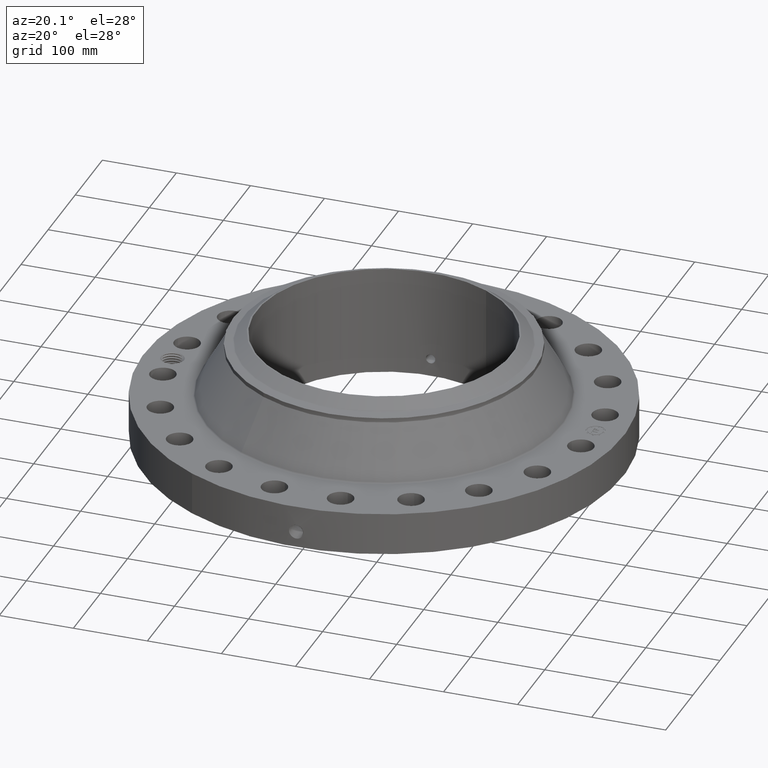
[diagram: clean part render]
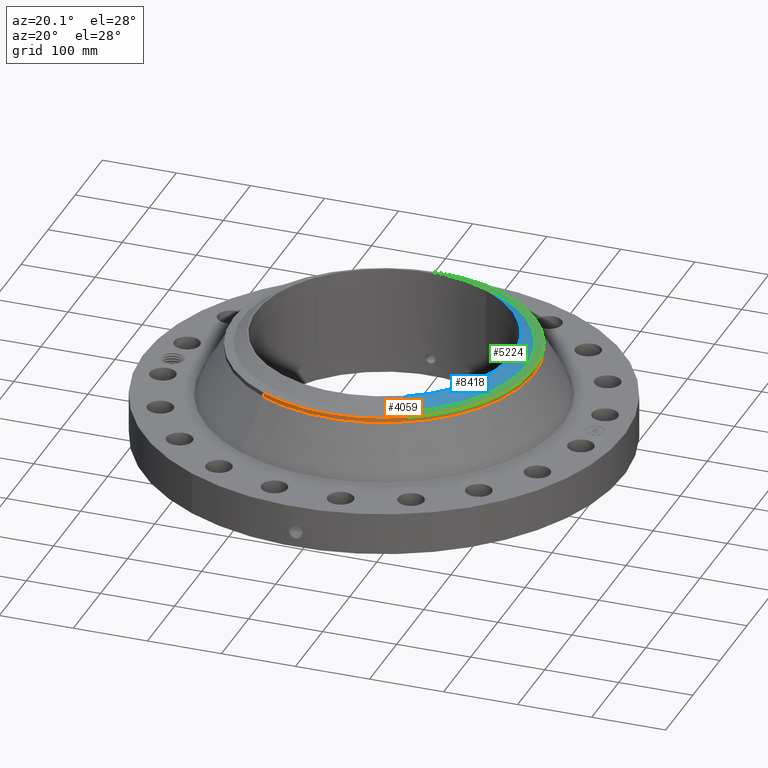
[diagram: same view with three faces highlighted in distinct colors, each labeled with its STEP entity id]
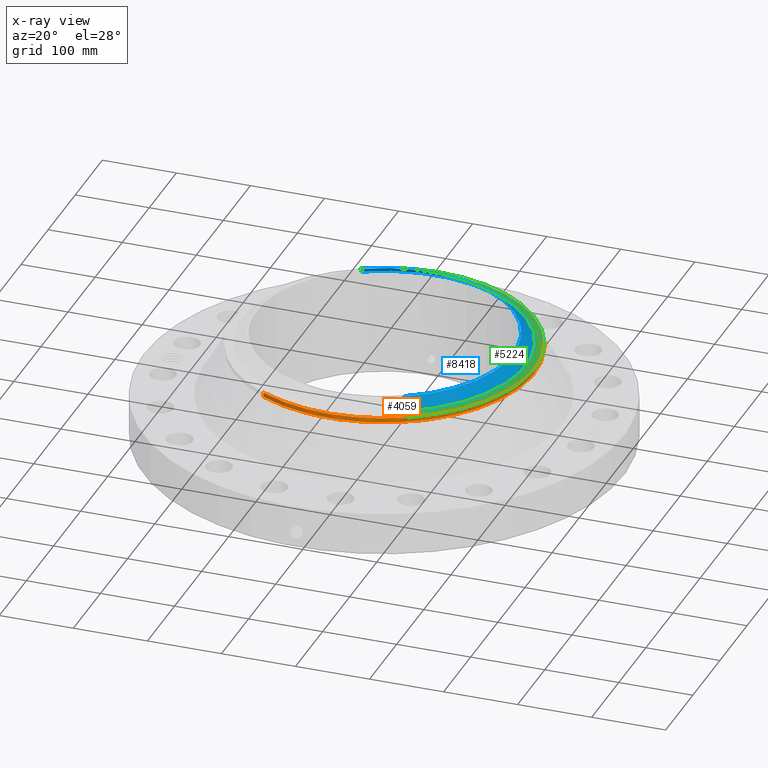
[diagram: x-ray of the same camera — body ghosted, the three highlighted faces saturated]
A machine part, auxiliary view with three faces highlighted in distinct colors.
The next image is the same camera in x-ray (body ghosted, the three faces saturated) — at least one of them is partly hidden behind the body in this view.
Their STEP definitions:

[orange] entity #4059 — the highlighted cylindrical surface (partial cylindrical patch) has radius 203.2 mm, axis along (0, 0, -1).
#3242=AXIS2_PLACEMENT_3D('Circle Axis2P3D',#3240,#3241,$) ;
#4024=AXIS2_PLACEMENT_3D('Cylinder Axis2P3D',#4021,#4022,#4023) ;
#4042=AXIS2_PLACEMENT_3D('Circle Axis2P3D',#4040,#4041,$) ;
#4049=AXIS2_PLACEMENT_3D('Circle Axis2P3D',#4047,#4048,$) ;
#3237=CARTESIAN_POINT('Vertex',(3.83540430885,7.02066049515,4.97716976636)) ;
#3240=CARTESIAN_POINT('Axis2P3D Location',(0.,0.,4.97716976636)) ;
#3244=CARTESIAN_POINT('Vertex',(-3.83540430885,-7.02066049515,4.97716976636)) ;
#4021=CARTESIAN_POINT('Axis2P3D Location',(0.,0.,2.90500000001)) ;
#4026=CARTESIAN_POINT('Line Origine',(-3.83540430885,-7.02066049515,5.09528000258)) ;
#4030=CARTESIAN_POINT('Vertex',(-3.83540430885,-7.02066049515,5.2133902388)) ;
#4033=CARTESIAN_POINT('Line Origine',(3.83540430885,7.02066049515,5.09528000258)) ;
#4037=CARTESIAN_POINT('Vertex',(3.83540430885,7.02066049515,5.2133902388)) ;
#4040=CARTESIAN_POINT('Axis2P3D Location',(0.,0.,5.2133902388)) ;
#4044=CARTESIAN_POINT('Vertex',(3.83540430885,-7.02066049515,5.2133902388)) ;
#4047=CARTESIAN_POINT('Axis2P3D Location',(0.,0.,5.2133902388)) ;
#3241=DIRECTION('Axis2P3D Direction',(0.,0.,-0.0393700787402)) ;
#4022=DIRECTION('Axis2P3D Direction',(0.,0.,-0.0393700787402)) ;
#4023=DIRECTION('Axis2P3D XDirection',(-0.0188750212049,-0.0345504945626,0.)) ;
#4027=DIRECTION('Vector Direction',(0.,0.,-0.0393700787402)) ;
#4034=DIRECTION('Vector Direction',(0.,0.,-0.0393700787402)) ;
#4041=DIRECTION('Axis2P3D Direction',(0.,0.,-0.0393700787402)) ;
#4048=DIRECTION('Axis2P3D Direction',(0.,0.,-0.0393700787402)) ;
#4028=VECTOR('Line Direction',#4027,0.0393700787402) ;
#4035=VECTOR('Line Direction',#4034,0.0393700787402) ;
#4053=ORIENTED_EDGE('',*,*,#4032,.F.) ;
#4054=ORIENTED_EDGE('',*,*,#3246,.F.) ;
#4055=ORIENTED_EDGE('',*,*,#4039,.T.) ;
#4056=ORIENTED_EDGE('',*,*,#4046,.F.) ;
#4057=ORIENTED_EDGE('',*,*,#4051,.T.) ;
#4059=ADVANCED_FACE('PartBody',(#4058),#4025,.T.) ;
#3243=CIRCLE('generated circle',#3242,8.00000000003) ;
#4043=CIRCLE('generated circle',#4042,8.00000000003) ;
#4050=CIRCLE('generated circle',#4049,8.00000000003) ;
#4025=CYLINDRICAL_SURFACE('generated cylinder',#4024,8.00000000003) ;
#3246=EDGE_CURVE('',#3238,#3245,#3243,.T.) ;
#4032=EDGE_CURVE('',#3245,#4031,#4029,.F.) ;
#4039=EDGE_CURVE('',#3238,#4038,#4036,.F.) ;
#4046=EDGE_CURVE('',#4045,#4038,#4043,.F.) ;
#4051=EDGE_CURVE('',#4045,#4031,#4050,.T.) ;
#4052=EDGE_LOOP('',(#4053,#4054,#4055,#4056,#4057)) ;
#4058=FACE_OUTER_BOUND('',#4052,.T.) ;
#4029=LINE('Line',#4026,#4028) ;
#4036=LINE('Line',#4033,#4035) ;
#3238=VERTEX_POINT('',#3237) ;
#3245=VERTEX_POINT('',#3244) ;
#4031=VERTEX_POINT('',#4030) ;
#4038=VERTEX_POINT('',#4037) ;
#4045=VERTEX_POINT('',#4044) ;

[blue] entity #8418 — the highlighted conical surface has half-angle 52.5 deg.
#4843=AXIS2_PLACEMENT_3D('Circle Axis2P3D',#4841,#4842,$) ;
#8379=AXIS2_PLACEMENT_3D('Cone Axis2P3D',#8376,#8377,#8378) ;
#8409=AXIS2_PLACEMENT_3D('Circle Axis2P3D',#8407,#8408,$) ;
#4841=CARTESIAN_POINT('Axis2P3D Location',(0.,0.,5.81000000002)) ;
#4845=CARTESIAN_POINT('Vertex',(3.2887346197,-6.01998834133,5.81000000002)) ;
#4847=CARTESIAN_POINT('Vertex',(-3.2887346197,6.01998834133,5.81000000002)) ;
#8376=CARTESIAN_POINT('Axis2P3D Location',(0.,0.,5.81000000002)) ;
#8381=CARTESIAN_POINT('Line Origine',(-3.44367592225,6.30360649323,5.56201437259)) ;
#8385=CARTESIAN_POINT('Vertex',(-3.5986172248,6.58722464514,5.31402874515)) ;
#8392=CARTESIAN_POINT('Vertex',(3.5986172248,-6.58722464514,5.31402874515)) ;
#8395=CARTESIAN_POINT('Line Origine',(3.44367592225,-6.30360649323,5.56201437259)) ;
#8407=CARTESIAN_POINT('Axis2P3D Location',(0.,0.,5.31402874515)) ;
#4842=DIRECTION('Axis2P3D Direction',(0.,0.,-0.0393700787402)) ;
#8377=DIRECTION('Axis2P3D Direction',(-0.,-0.,-0.0393700787402)) ;
#8378=DIRECTION('Axis2P3D XDirection',(-0.0188750212049,0.0345504945626,0.)) ;
#8382=DIRECTION('Vector Direction',(-0.014974561121,0.02741075027,-0.023966985394)) ;
#8396=DIRECTION('Vector Direction',(0.014974561121,-0.02741075027,-0.023966985394)) ;
#8408=DIRECTION('Axis2P3D Direction',(0.,0.,-0.0393700787402)) ;
#8383=VECTOR('Line Direction',#8382,0.0393700787402) ;
#8397=VECTOR('Line Direction',#8396,0.0393700787402) ;
#8413=ORIENTED_EDGE('',*,*,#4849,.F.) ;
#8414=ORIENTED_EDGE('',*,*,#8399,.T.) ;
#8415=ORIENTED_EDGE('',*,*,#8411,.T.) ;
#8416=ORIENTED_EDGE('',*,*,#8387,.F.) ;
#8418=ADVANCED_FACE('PartBody',(#8417),#8380,.T.) ;
#4844=CIRCLE('generated circle',#4843,6.85974015751) ;
#8410=CIRCLE('generated circle',#8409,7.50610248105) ;
#8380=CONICAL_SURFACE('Cone',#8379,6.85974015751,0.916297857297) ;
#4849=EDGE_CURVE('',#4846,#4848,#4844,.F.) ;
#8387=EDGE_CURVE('',#4848,#8386,#8384,.T.) ;
#8399=EDGE_CURVE('',#4846,#8393,#8398,.T.) ;
#8411=EDGE_CURVE('',#8393,#8386,#8410,.F.) ;
#8412=EDGE_LOOP('',(#8413,#8414,#8415,#8416)) ;
#8417=FACE_OUTER_BOUND('',#8412,.T.) ;
#8384=LINE('Line',#8381,#8383) ;
#8398=LINE('Line',#8395,#8397) ;
#4846=VERTEX_POINT('',#4845) ;
#4848=VERTEX_POINT('',#4847) ;
#8386=VERTEX_POINT('',#8385) ;
#8393=VERTEX_POINT('',#8392) ;

[green] entity #5224 — the highlighted conical surface has half-angle 80 deg.
#4042=AXIS2_PLACEMENT_3D('Circle Axis2P3D',#4040,#4041,$) ;
#4069=AXIS2_PLACEMENT_3D('Circle Axis2P3D',#4067,#4068,$) ;
#5196=AXIS2_PLACEMENT_3D('Cone Axis2P3D',#5193,#5194,#5195) ;
#5207=AXIS2_PLACEMENT_3D('Circle Axis2P3D',#5205,#5206,$) ;
#4037=CARTESIAN_POINT('Vertex',(3.83540430885,7.02066049515,5.2133902388)) ;
#4040=CARTESIAN_POINT('Axis2P3D Location',(0.,0.,5.2133902388)) ;
#4044=CARTESIAN_POINT('Vertex',(3.83540430885,-7.02066049515,5.2133902388)) ;
#4064=CARTESIAN_POINT('Vertex',(-3.83540430885,7.02066049515,5.2133902388)) ;
#4067=CARTESIAN_POINT('Axis2P3D Location',(0.,0.,5.2133902388)) ;
#5193=CARTESIAN_POINT('Axis2P3D Location',(0.,0.,5.29141601924)) ;
#5198=CARTESIAN_POINT('Line Origine',(-3.72932992459,6.82649263718,5.25240312902)) ;
#5202=CARTESIAN_POINT('Vertex',(-3.62325554033,6.63232477921,5.29141601924)) ;
#5205=CARTESIAN_POINT('Axis2P3D Location',(0.,0.,5.29141601924)) ;
#5209=CARTESIAN_POINT('Vertex',(3.62325554033,-6.63232477921,5.29141601924)) ;
#5212=CARTESIAN_POINT('Line Origine',(3.72932992459,-6.82649263718,5.25240312902)) ;
#4041=DIRECTION('Axis2P3D Direction',(0.,0.,-0.0393700787402)) ;
#4068=DIRECTION('Axis2P3D Direction',(0.,0.,-0.0393700787402)) ;
#5194=DIRECTION('Axis2P3D Direction',(-0.,-0.,-0.0393700787402)) ;
#5195=DIRECTION('Axis2P3D XDirection',(0.0188750212049,-0.0345504945626,0.)) ;
#5199=DIRECTION('Vector Direction',(-0.0185882672208,0.0340255949157,-0.00683654242783)) ;
#5206=DIRECTION('Axis2P3D Direction',(0.,0.,-0.0393700787402)) ;
#5213=DIRECTION('Vector Direction',(0.0185882672208,-0.0340255949157,-0.00683654242783)) ;
#5200=VECTOR('Line Direction',#5199,0.0393700787402) ;
#5214=VECTOR('Line Direction',#5213,0.0393700787402) ;
#5218=ORIENTED_EDGE('',*,*,#5204,.F.) ;
#5219=ORIENTED_EDGE('',*,*,#5211,.F.) ;
#5220=ORIENTED_EDGE('',*,*,#5216,.T.) ;
#5221=ORIENTED_EDGE('',*,*,#4046,.T.) ;
#5222=ORIENTED_EDGE('',*,*,#4071,.F.) ;
#5224=ADVANCED_FACE('PartBody',(#5223),#5197,.T.) ;
#4043=CIRCLE('generated circle',#4042,8.00000000003) ;
#4070=CIRCLE('generated circle',#4069,8.00000000003) ;
#5208=CIRCLE('generated circle',#5207,7.55749380995) ;
#5197=CONICAL_SURFACE('Cone',#5196,7.55749380995,1.3962634016) ;
#4046=EDGE_CURVE('',#4045,#4038,#4043,.F.) ;
#4071=EDGE_CURVE('',#4065,#4038,#4070,.T.) ;
#5204=EDGE_CURVE('',#5203,#4065,#5201,.T.) ;
#5211=EDGE_CURVE('',#5210,#5203,#5208,.F.) ;
#5216=EDGE_CURVE('',#5210,#4045,#5215,.T.) ;
#5217=EDGE_LOOP('',(#5218,#5219,#5220,#5221,#5222)) ;
#5223=FACE_OUTER_BOUND('',#5217,.T.) ;
#5201=LINE('Line',#5198,#5200) ;
#5215=LINE('Line',#5212,#5214) ;
#4038=VERTEX_POINT('',#4037) ;
#4045=VERTEX_POINT('',#4044) ;
#4065=VERTEX_POINT('',#4064) ;
#5203=VERTEX_POINT('',#5202) ;
#5210=VERTEX_POINT('',#5209) ;